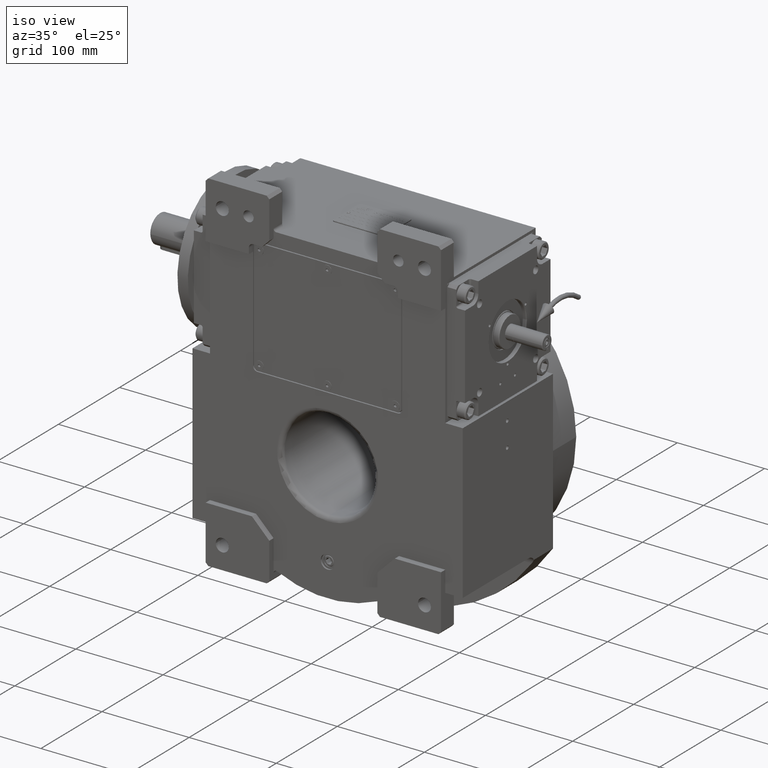
[diagram: clean part render]
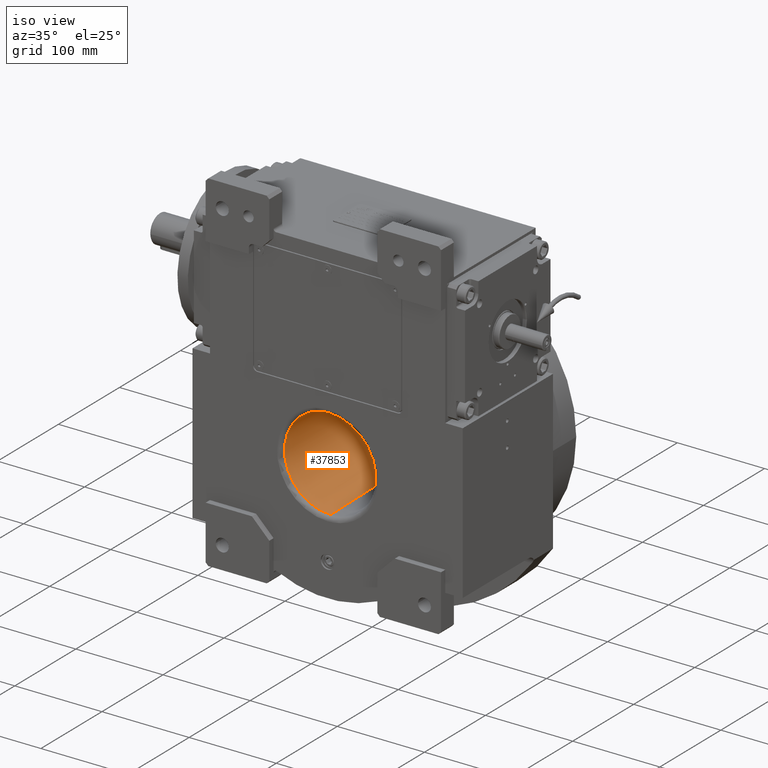
[diagram: same view with one face highlighted and labeled with its STEP entity id]
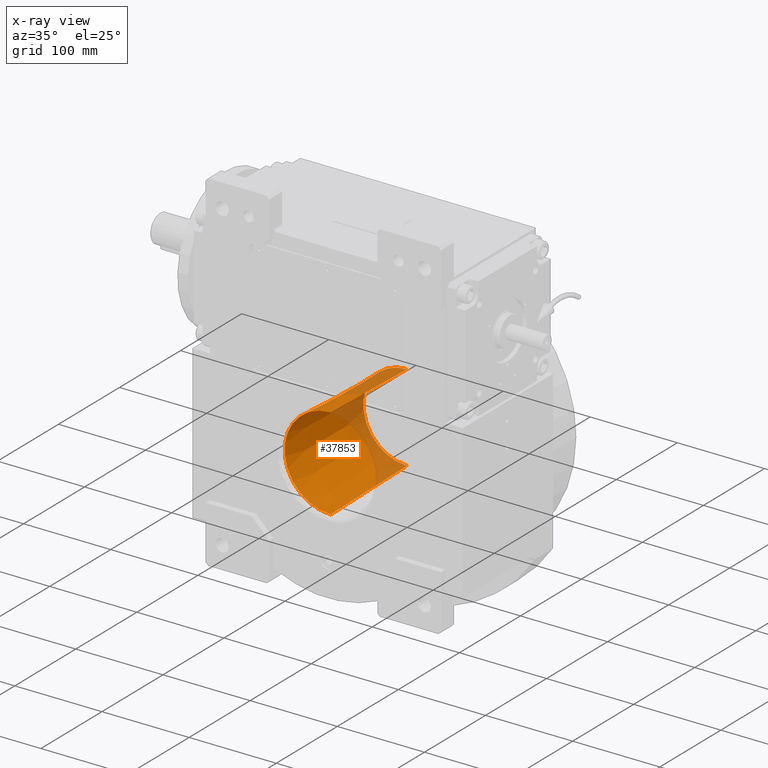
[diagram: x-ray of the same camera — body ghosted, the highlighted face saturated]
A machine part, iso view. The second image highlights one B-rep face of the part: STEP entity #37853.
The next image is the same camera in x-ray: the body ghosted, the highlighted face saturated — about 23% of this face is hidden behind the body in this view.
In plain terms, the highlighted conical surface has half-angle 1.292 deg.
Its self-contained STEP definition (entity closure, byte-faithful):
#3534 = EDGE_CURVE ( 'NONE', #53581, #41249, #32143, .T. ) ;
#5746 = DIRECTION ( 'NONE',  ( 0.9817544653963818924, -1.960699399857663348E-08, -0.1901530164742704643 ) ) ;
#8371 = CARTESIAN_POINT ( 'NONE',  ( -3.366447261396295104E-11, -68.11275327462200835, 52.88976135205919604 ) ) ;
#10870 = EDGE_CURVE ( 'NONE', #32261, #41249, #24607, .T. ) ;
#12540 = DIRECTION ( 'NONE',  ( 2.310691404686464099E-08, 0.9999999999999997780, 1.490116125507999888E-08 ) ) ;
#15939 = VECTOR ( 'NONE', #53600, 1000.000000000000114 ) ;
#16080 = ORIENTED_EDGE ( 'NONE', *, *, #53959, .F. ) ;
#18208 = CARTESIAN_POINT ( 'NONE',  ( 5.632922360699180090E-12, 57.06765196477320501, -50.06614318876450653 ) ) ;
#20935 = AXIS2_PLACEMENT_3D ( 'NONE', #52606, #34845, #36258 ) ;
#21499 = VECTOR ( 'NONE', #64099, 1000.000000000000114 ) ;
#22295 = LINE ( 'NONE', #26926, #15939 ) ;
#24607 = CIRCLE ( 'NONE', #67696, 50.06614321695211345 ) ;
#24615 = DIRECTION ( 'NONE',  ( 0.9882587347805640299, -2.055886669902873894E-08, -0.1527896368538074756 ) ) ;
#26071 = CARTESIAN_POINT ( 'NONE',  ( -5.647091595521470526E-12, 57.06765196477320501, 50.06614318876450653 ) ) ;
#26190 = ORIENTED_EDGE ( 'NONE', *, *, #10870, .T. ) ;
#26926 = CARTESIAN_POINT ( 'NONE',  ( 6.477127694746659705E-15, -68.11275327462179519, -52.88976135205919604 ) ) ;
#28770 = DIRECTION ( 'NONE',  ( 1.997138262492154581E-08, 0.9999999999999997780, 6.123233971614108296E-17 ) ) ;
#29408 = ORIENTED_EDGE ( 'NONE', *, *, #47262, .T. ) ;
#32143 = LINE ( 'NONE', #70163, #21499 ) ;
#32261 = VERTEX_POINT ( 'NONE', #18208 ) ;
#32946 = VERTEX_POINT ( 'NONE', #43586 ) ;
#34845 = DIRECTION ( 'NONE',  ( 0.000000000000000000, -1.000000000000000000, 1.836909530733564901E-16 ) ) ;
#36258 = DIRECTION ( 'NONE',  ( 0.000000000000000000, 0.000000000000000000, 1.000000000000000000 ) ) ;
#37672 = ORIENTED_EDGE ( 'NONE', *, *, #3534, .F. ) ;
#37853 = ADVANCED_FACE ( 'NONE', ( #56877 ), #40224, .F. ) ;
#40224 = CONICAL_SURFACE ( 'NONE', #20935, 1.000000000000000000, 0.02255256665030591981 ) ;
#41249 = VERTEX_POINT ( 'NONE', #26071 ) ;
#43586 = CARTESIAN_POINT ( 'NONE',  ( 3.366158563859759886E-11, -68.11275327462200835, -52.88976135205919604 ) ) ;
#47262 = EDGE_CURVE ( 'NONE', #32946, #32261, #22295, .T. ) ;
#50568 = CARTESIAN_POINT ( 'NONE',  ( 5.180066373969149615E-08, -68.11275406274060629, 4.736386318413870025E-15 ) ) ;
#52606 = CARTESIAN_POINT ( 'NONE',  ( 0.000000000000000000, 2232.333333333314840, -3.962844522719785252E-13 ) ) ;
#53581 = VERTEX_POINT ( 'NONE', #8371 ) ;
#53600 = DIRECTION ( 'NONE',  ( -2.761658737181604074E-18, 0.9997457016474147196, 0.02255065492437784494 ) ) ;
#53959 = EDGE_CURVE ( 'NONE', #32946, #53581, #59925, .T. ) ;
#56877 = FACE_OUTER_BOUND ( 'NONE', #62981, .T. ) ;
#59925 = CIRCLE ( 'NONE', #62221, 52.88976140256119152 ) ;
#61114 = CARTESIAN_POINT ( 'NONE',  ( 3.083076751974459965E-08, 57.06765196477320501, -2.539431900768300017E-15 ) ) ;
#62221 = AXIS2_PLACEMENT_3D ( 'NONE', #50568, #12540, #24615 ) ;
#62981 = EDGE_LOOP ( 'NONE', ( #29408, #26190, #37672, #16080 ) ) ;
#64099 = DIRECTION ( 'NONE',  ( 5.523317474363207377E-18, 0.9997457016474147196, -0.02255065492437819882 ) ) ;
#67696 = AXIS2_PLACEMENT_3D ( 'NONE', #61114, #28770, #5746 ) ;
#70163 = CARTESIAN_POINT ( 'NONE',  ( -1.295425538949331941E-14, -68.11275327462179519, 52.88976135205919604 ) ) ;